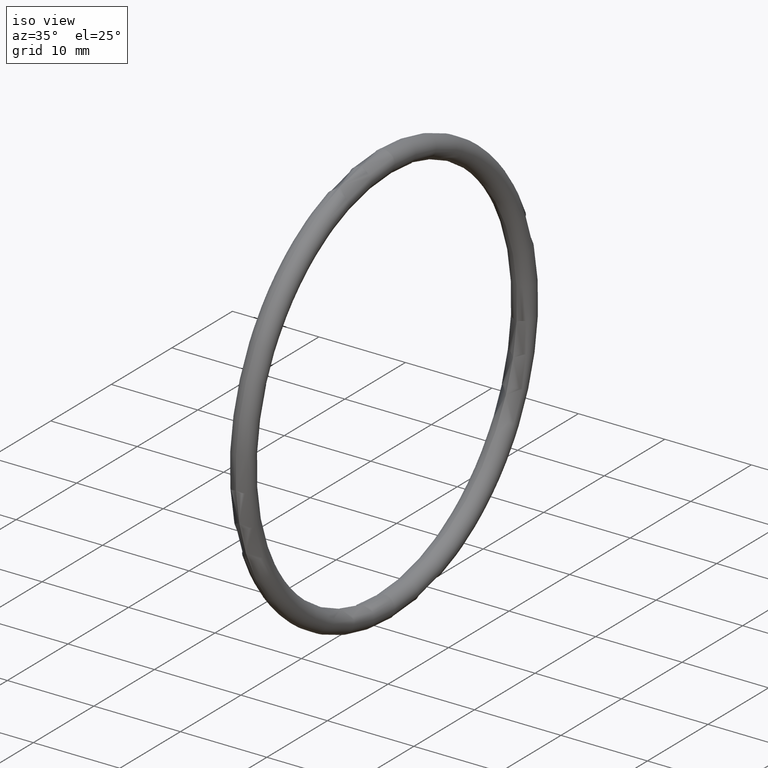
[diagram: clean part render]
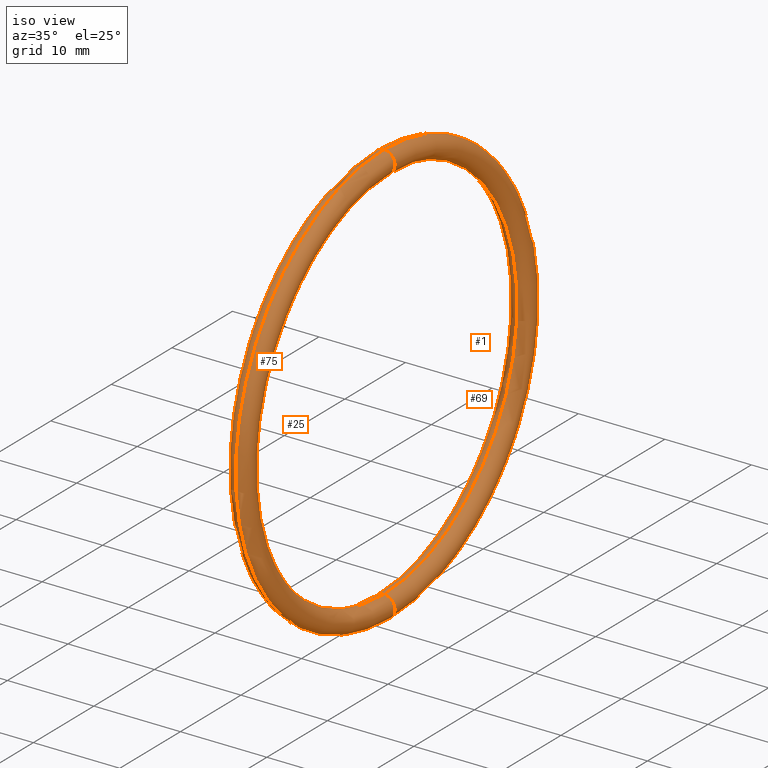
[diagram: same view with one multi-face feature highlighted, each face labeled with its STEP entity id]
A machine part, iso view. The highlighted faces form ONE feature: a constant-radius fillet chain: 4 tangent blend faces with common blend radius 1.27 mm. The faces share edges in the B-rep.
Their STEP definitions:
[1] entity #69 (Torus):
#21 = EDGE_CURVE ( 'NONE', #31, #79, #61, .T. ) ;
#22 = ORIENTED_EDGE ( 'NONE', *, *, #78, .T. ) ;
#23 = ORIENTED_EDGE ( 'NONE', *, *, #24, .F. ) ;
#24 = EDGE_CURVE ( 'NONE', #32, #80, #56, .T. ) ;
#26 = EDGE_CURVE ( 'NONE', #31, #32, #41, .T. ) ;
#31 = VERTEX_POINT ( 'NONE', #115 ) ;
#32 = VERTEX_POINT ( 'NONE', #101 ) ;
#37 = DIRECTION ( 'NONE',  ( 0.0000000000000000000, 0.0000000000000000000, -1.000000000000000000 ) ) ;
#38 = DIRECTION ( 'NONE',  ( 0.0000000000000000000, -1.000000000000000000, 0.0000000000000000000 ) ) ;
#39 = CARTESIAN_POINT ( 'NONE',  ( 0.1000000000000001300, 0.0000000000000000000, 0.9149999999999999200 ) ) ;
#40 = AXIS2_PLACEMENT_3D ( 'NONE', #39, #38, #37 ) ;
#41 = CIRCLE ( 'NONE', #40, 0.05000000000000001000 ) ;
#53 = DIRECTION ( 'NONE',  ( 0.0000000000000000000, 0.0000000000000000000, 1.000000000000000000 ) ) ;
#54 = DIRECTION ( 'NONE',  ( -1.000000000000000000, 0.0000000000000000000, 0.0000000000000000000 ) ) ;
#55 = AXIS2_PLACEMENT_3D ( 'NONE', #62, #54, #53 ) ;
#56 = CIRCLE ( 'NONE', #55, 0.8649999999999998800 ) ;
#58 = DIRECTION ( 'NONE',  ( 0.0000000000000000000, 0.0000000000000000000, 1.000000000000000000 ) ) ;
#59 = DIRECTION ( 'NONE',  ( -1.000000000000000000, 0.0000000000000000000, 0.0000000000000000000 ) ) ;
#60 = AXIS2_PLACEMENT_3D ( 'NONE', #67, #59, #58 ) ;
#61 = CIRCLE ( 'NONE', #60, 0.9649999999999999700 ) ;
#62 = CARTESIAN_POINT ( 'NONE',  ( 0.1000000000000001300, 0.0000000000000000000, 0.0000000000000000000 ) ) ;
#67 = CARTESIAN_POINT ( 'NONE',  ( 0.1000000000000001300, 0.0000000000000000000, 0.0000000000000000000 ) ) ;
#69 = ADVANCED_FACE ( 'NONE', ( #100 ), #106, .T. ) ;
#70 = EDGE_LOOP ( 'NONE', ( #71, #72, #22, #23 ) ) ;
#71 = ORIENTED_EDGE ( 'NONE', *, *, #26, .F. ) ;
#72 = ORIENTED_EDGE ( 'NONE', *, *, #21, .T. ) ;
#78 = EDGE_CURVE ( 'NONE', #79, #80, #92, .T. ) ;
#79 = VERTEX_POINT ( 'NONE', #108 ) ;
#80 = VERTEX_POINT ( 'NONE', #111 ) ;
#88 = DIRECTION ( 'NONE',  ( 0.0000000000000000000, -1.224646799147354700E-016, 1.000000000000000000 ) ) ;
#89 = DIRECTION ( 'NONE',  ( 0.0000000000000000000, 1.000000000000000000, 1.224646799147353200E-016 ) ) ;
#90 = CARTESIAN_POINT ( 'NONE',  ( 0.1000000000000001300, 1.120551821219828000E-016, -0.9149999999999999200 ) ) ;
#91 = AXIS2_PLACEMENT_3D ( 'NONE', #90, #89, #88 ) ;
#92 = CIRCLE ( 'NONE', #91, 0.05000000000000001000 ) ;
#100 = FACE_OUTER_BOUND ( 'NONE', #70, .T. ) ;
#101 = CARTESIAN_POINT ( 'NONE',  ( 0.1000000000000001300, 0.0000000000000000000, 0.8649999999999998800 ) ) ;
#105 = AXIS2_PLACEMENT_3D ( 'NONE', #114, #113, #112 ) ;
#106 = TOROIDAL_SURFACE ( 'NONE', #105, 0.9149999999999999200, 0.05000000000000002400 ) ;
#108 = CARTESIAN_POINT ( 'NONE',  ( 0.1000000000000001300, 1.181784161177195800E-016, -0.9649999999999999700 ) ) ;
#111 = CARTESIAN_POINT ( 'NONE',  ( 0.1000000000000001300, 1.059319481262460300E-016, -0.8649999999999998800 ) ) ;
#112 = DIRECTION ( 'NONE',  ( 0.0000000000000000000, 0.0000000000000000000, 1.000000000000000000 ) ) ;
#113 = DIRECTION ( 'NONE',  ( -1.000000000000000000, 0.0000000000000000000, 0.0000000000000000000 ) ) ;
#114 = CARTESIAN_POINT ( 'NONE',  ( 0.1000000000000001300, 0.0000000000000000000, 0.0000000000000000000 ) ) ;
#115 = CARTESIAN_POINT ( 'NONE',  ( 0.1000000000000001300, 0.0000000000000000000, 0.9649999999999999700 ) ) ;
[2] entity #1 (Torus):
#1 = ADVANCED_FACE ( 'NONE', ( #13 ), #12, .T. ) ;
#2 = EDGE_CURVE ( 'NONE', #80, #79, #6, .T. ) ;
#3 = DIRECTION ( 'NONE',  ( 0.0000000000000000000, 1.000000000000000000, 1.224646799147353200E-016 ) ) ;
#4 = CARTESIAN_POINT ( 'NONE',  ( 0.1000000000000001300, 1.120551821219828000E-016, -0.9149999999999999200 ) ) ;
#5 = AXIS2_PLACEMENT_3D ( 'NONE', #4, #3, #68 ) ;
#6 = CIRCLE ( 'NONE', #5, 0.05000000000000001000 ) ;
#7 = CARTESIAN_POINT ( 'NONE',  ( 0.1000000000000001300, 0.0000000000000000000, 0.9149999999999999200 ) ) ;
#8 = DIRECTION ( 'NONE',  ( 0.0000000000000000000, 0.0000000000000000000, 1.000000000000000000 ) ) ;
#9 = DIRECTION ( 'NONE',  ( -1.000000000000000000, 0.0000000000000000000, 0.0000000000000000000 ) ) ;
#10 = CARTESIAN_POINT ( 'NONE',  ( 0.1000000000000001300, 0.0000000000000000000, 0.0000000000000000000 ) ) ;
#11 = AXIS2_PLACEMENT_3D ( 'NONE', #10, #9, #8 ) ;
#12 = TOROIDAL_SURFACE ( 'NONE', #11, 0.9149999999999999200, 0.05000000000000002400 ) ;
#13 = FACE_OUTER_BOUND ( 'NONE', #14, .T. ) ;
#14 = EDGE_LOOP ( 'NONE', ( #15, #16, #48, #20 ) ) ;
#15 = ORIENTED_EDGE ( 'NONE', *, *, #21, .F. ) ;
#16 = ORIENTED_EDGE ( 'NONE', *, *, #19, .F. ) ;
#19 = EDGE_CURVE ( 'NONE', #32, #31, #66, .T. ) ;
#20 = ORIENTED_EDGE ( 'NONE', *, *, #2, .T. ) ;
#21 = EDGE_CURVE ( 'NONE', #31, #79, #61, .T. ) ;
#24 = EDGE_CURVE ( 'NONE', #32, #80, #56, .T. ) ;
#31 = VERTEX_POINT ( 'NONE', #115 ) ;
#32 = VERTEX_POINT ( 'NONE', #101 ) ;
#48 = ORIENTED_EDGE ( 'NONE', *, *, #24, .T. ) ;
#53 = DIRECTION ( 'NONE',  ( 0.0000000000000000000, 0.0000000000000000000, 1.000000000000000000 ) ) ;
#54 = DIRECTION ( 'NONE',  ( -1.000000000000000000, 0.0000000000000000000, 0.0000000000000000000 ) ) ;
#55 = AXIS2_PLACEMENT_3D ( 'NONE', #62, #54, #53 ) ;
#56 = CIRCLE ( 'NONE', #55, 0.8649999999999998800 ) ;
#58 = DIRECTION ( 'NONE',  ( 0.0000000000000000000, 0.0000000000000000000, 1.000000000000000000 ) ) ;
#59 = DIRECTION ( 'NONE',  ( -1.000000000000000000, 0.0000000000000000000, 0.0000000000000000000 ) ) ;
#60 = AXIS2_PLACEMENT_3D ( 'NONE', #67, #59, #58 ) ;
#61 = CIRCLE ( 'NONE', #60, 0.9649999999999999700 ) ;
#62 = CARTESIAN_POINT ( 'NONE',  ( 0.1000000000000001300, 0.0000000000000000000, 0.0000000000000000000 ) ) ;
#63 = DIRECTION ( 'NONE',  ( 0.0000000000000000000, 0.0000000000000000000, -1.000000000000000000 ) ) ;
#64 = DIRECTION ( 'NONE',  ( 0.0000000000000000000, -1.000000000000000000, 0.0000000000000000000 ) ) ;
#65 = AXIS2_PLACEMENT_3D ( 'NONE', #7, #64, #63 ) ;
#66 = CIRCLE ( 'NONE', #65, 0.05000000000000001000 ) ;
#67 = CARTESIAN_POINT ( 'NONE',  ( 0.1000000000000001300, 0.0000000000000000000, 0.0000000000000000000 ) ) ;
#68 = DIRECTION ( 'NONE',  ( 0.0000000000000000000, -1.224646799147354700E-016, 1.000000000000000000 ) ) ;
#79 = VERTEX_POINT ( 'NONE', #108 ) ;
#80 = VERTEX_POINT ( 'NONE', #111 ) ;
#101 = CARTESIAN_POINT ( 'NONE',  ( 0.1000000000000001300, 0.0000000000000000000, 0.8649999999999998800 ) ) ;
#108 = CARTESIAN_POINT ( 'NONE',  ( 0.1000000000000001300, 1.181784161177195800E-016, -0.9649999999999999700 ) ) ;
#111 = CARTESIAN_POINT ( 'NONE',  ( 0.1000000000000001300, 1.059319481262460300E-016, -0.8649999999999998800 ) ) ;
#115 = CARTESIAN_POINT ( 'NONE',  ( 0.1000000000000001300, 0.0000000000000000000, 0.9649999999999999700 ) ) ;
[3] entity #25 (Torus):
#2 = EDGE_CURVE ( 'NONE', #80, #79, #6, .T. ) ;
#3 = DIRECTION ( 'NONE',  ( 0.0000000000000000000, 1.000000000000000000, 1.224646799147353200E-016 ) ) ;
#4 = CARTESIAN_POINT ( 'NONE',  ( 0.1000000000000001300, 1.120551821219828000E-016, -0.9149999999999999200 ) ) ;
#5 = AXIS2_PLACEMENT_3D ( 'NONE', #4, #3, #68 ) ;
#6 = CIRCLE ( 'NONE', #5, 0.05000000000000001000 ) ;
#7 = CARTESIAN_POINT ( 'NONE',  ( 0.1000000000000001300, 0.0000000000000000000, 0.9149999999999999200 ) ) ;
#18 = EDGE_LOOP ( 'NONE', ( #49, #73, #51, #50 ) ) ;
#19 = EDGE_CURVE ( 'NONE', #32, #31, #66, .T. ) ;
#25 = ADVANCED_FACE ( 'NONE', ( #57 ), #46, .T. ) ;
#28 = EDGE_CURVE ( 'NONE', #80, #32, #36, .T. ) ;
#30 = EDGE_CURVE ( 'NONE', #79, #31, #109, .T. ) ;
#31 = VERTEX_POINT ( 'NONE', #115 ) ;
#32 = VERTEX_POINT ( 'NONE', #101 ) ;
#33 = DIRECTION ( 'NONE',  ( 0.0000000000000000000, 0.0000000000000000000, 1.000000000000000000 ) ) ;
#34 = DIRECTION ( 'NONE',  ( -1.000000000000000000, 0.0000000000000000000, 0.0000000000000000000 ) ) ;
#35 = AXIS2_PLACEMENT_3D ( 'NONE', #42, #34, #33 ) ;
#36 = CIRCLE ( 'NONE', #35, 0.8649999999999998800 ) ;
#42 = CARTESIAN_POINT ( 'NONE',  ( 0.1000000000000001300, 0.0000000000000000000, 0.0000000000000000000 ) ) ;
#43 = DIRECTION ( 'NONE',  ( 0.0000000000000000000, 0.0000000000000000000, 1.000000000000000000 ) ) ;
#44 = DIRECTION ( 'NONE',  ( -1.000000000000000000, 0.0000000000000000000, 0.0000000000000000000 ) ) ;
#45 = AXIS2_PLACEMENT_3D ( 'NONE', #52, #44, #43 ) ;
#46 = TOROIDAL_SURFACE ( 'NONE', #45, 0.9149999999999999200, 0.05000000000000002400 ) ;
#49 = ORIENTED_EDGE ( 'NONE', *, *, #30, .F. ) ;
#50 = ORIENTED_EDGE ( 'NONE', *, *, #19, .T. ) ;
#51 = ORIENTED_EDGE ( 'NONE', *, *, #28, .T. ) ;
#52 = CARTESIAN_POINT ( 'NONE',  ( 0.1000000000000001300, 0.0000000000000000000, 0.0000000000000000000 ) ) ;
#57 = FACE_OUTER_BOUND ( 'NONE', #18, .T. ) ;
#63 = DIRECTION ( 'NONE',  ( 0.0000000000000000000, 0.0000000000000000000, -1.000000000000000000 ) ) ;
#64 = DIRECTION ( 'NONE',  ( 0.0000000000000000000, -1.000000000000000000, 0.0000000000000000000 ) ) ;
#65 = AXIS2_PLACEMENT_3D ( 'NONE', #7, #64, #63 ) ;
#66 = CIRCLE ( 'NONE', #65, 0.05000000000000001000 ) ;
#68 = DIRECTION ( 'NONE',  ( 0.0000000000000000000, -1.224646799147354700E-016, 1.000000000000000000 ) ) ;
#73 = ORIENTED_EDGE ( 'NONE', *, *, #2, .F. ) ;
#79 = VERTEX_POINT ( 'NONE', #108 ) ;
#80 = VERTEX_POINT ( 'NONE', #111 ) ;
#83 = AXIS2_PLACEMENT_3D ( 'NONE', #85, #84, #116 ) ;
#84 = DIRECTION ( 'NONE',  ( -1.000000000000000000, 0.0000000000000000000, 0.0000000000000000000 ) ) ;
#85 = CARTESIAN_POINT ( 'NONE',  ( 0.1000000000000001300, 0.0000000000000000000, 0.0000000000000000000 ) ) ;
#101 = CARTESIAN_POINT ( 'NONE',  ( 0.1000000000000001300, 0.0000000000000000000, 0.8649999999999998800 ) ) ;
#108 = CARTESIAN_POINT ( 'NONE',  ( 0.1000000000000001300, 1.181784161177195800E-016, -0.9649999999999999700 ) ) ;
#109 = CIRCLE ( 'NONE', #83, 0.9649999999999999700 ) ;
#111 = CARTESIAN_POINT ( 'NONE',  ( 0.1000000000000001300, 1.059319481262460300E-016, -0.8649999999999998800 ) ) ;
#115 = CARTESIAN_POINT ( 'NONE',  ( 0.1000000000000001300, 0.0000000000000000000, 0.9649999999999999700 ) ) ;
#116 = DIRECTION ( 'NONE',  ( 0.0000000000000000000, 0.0000000000000000000, 1.000000000000000000 ) ) ;
[4] entity #75 (Torus):
#17 = ORIENTED_EDGE ( 'NONE', *, *, #26, .T. ) ;
#26 = EDGE_CURVE ( 'NONE', #31, #32, #41, .T. ) ;
#27 = ORIENTED_EDGE ( 'NONE', *, *, #28, .F. ) ;
#28 = EDGE_CURVE ( 'NONE', #80, #32, #36, .T. ) ;
#29 = ORIENTED_EDGE ( 'NONE', *, *, #30, .T. ) ;
#30 = EDGE_CURVE ( 'NONE', #79, #31, #109, .T. ) ;
#31 = VERTEX_POINT ( 'NONE', #115 ) ;
#32 = VERTEX_POINT ( 'NONE', #101 ) ;
#33 = DIRECTION ( 'NONE',  ( 0.0000000000000000000, 0.0000000000000000000, 1.000000000000000000 ) ) ;
#34 = DIRECTION ( 'NONE',  ( -1.000000000000000000, 0.0000000000000000000, 0.0000000000000000000 ) ) ;
#35 = AXIS2_PLACEMENT_3D ( 'NONE', #42, #34, #33 ) ;
#36 = CIRCLE ( 'NONE', #35, 0.8649999999999998800 ) ;
#37 = DIRECTION ( 'NONE',  ( 0.0000000000000000000, 0.0000000000000000000, -1.000000000000000000 ) ) ;
#38 = DIRECTION ( 'NONE',  ( 0.0000000000000000000, -1.000000000000000000, 0.0000000000000000000 ) ) ;
#39 = CARTESIAN_POINT ( 'NONE',  ( 0.1000000000000001300, 0.0000000000000000000, 0.9149999999999999200 ) ) ;
#40 = AXIS2_PLACEMENT_3D ( 'NONE', #39, #38, #37 ) ;
#41 = CIRCLE ( 'NONE', #40, 0.05000000000000001000 ) ;
#42 = CARTESIAN_POINT ( 'NONE',  ( 0.1000000000000001300, 0.0000000000000000000, 0.0000000000000000000 ) ) ;
#75 = ADVANCED_FACE ( 'NONE', ( #119 ), #81, .T. ) ;
#76 = EDGE_LOOP ( 'NONE', ( #77, #29, #17, #27 ) ) ;
#77 = ORIENTED_EDGE ( 'NONE', *, *, #78, .F. ) ;
#78 = EDGE_CURVE ( 'NONE', #79, #80, #92, .T. ) ;
#79 = VERTEX_POINT ( 'NONE', #108 ) ;
#80 = VERTEX_POINT ( 'NONE', #111 ) ;
#81 = TOROIDAL_SURFACE ( 'NONE', #118, 0.9149999999999999200, 0.05000000000000002400 ) ;
#82 = DIRECTION ( 'NONE',  ( -1.000000000000000000, 0.0000000000000000000, 0.0000000000000000000 ) ) ;
#83 = AXIS2_PLACEMENT_3D ( 'NONE', #85, #84, #116 ) ;
#84 = DIRECTION ( 'NONE',  ( -1.000000000000000000, 0.0000000000000000000, 0.0000000000000000000 ) ) ;
#85 = CARTESIAN_POINT ( 'NONE',  ( 0.1000000000000001300, 0.0000000000000000000, 0.0000000000000000000 ) ) ;
#88 = DIRECTION ( 'NONE',  ( 0.0000000000000000000, -1.224646799147354700E-016, 1.000000000000000000 ) ) ;
#89 = DIRECTION ( 'NONE',  ( 0.0000000000000000000, 1.000000000000000000, 1.224646799147353200E-016 ) ) ;
#90 = CARTESIAN_POINT ( 'NONE',  ( 0.1000000000000001300, 1.120551821219828000E-016, -0.9149999999999999200 ) ) ;
#91 = AXIS2_PLACEMENT_3D ( 'NONE', #90, #89, #88 ) ;
#92 = CIRCLE ( 'NONE', #91, 0.05000000000000001000 ) ;
#101 = CARTESIAN_POINT ( 'NONE',  ( 0.1000000000000001300, 0.0000000000000000000, 0.8649999999999998800 ) ) ;
#104 = CARTESIAN_POINT ( 'NONE',  ( 0.1000000000000001300, 0.0000000000000000000, 0.0000000000000000000 ) ) ;
#108 = CARTESIAN_POINT ( 'NONE',  ( 0.1000000000000001300, 1.181784161177195800E-016, -0.9649999999999999700 ) ) ;
#109 = CIRCLE ( 'NONE', #83, 0.9649999999999999700 ) ;
#111 = CARTESIAN_POINT ( 'NONE',  ( 0.1000000000000001300, 1.059319481262460300E-016, -0.8649999999999998800 ) ) ;
#115 = CARTESIAN_POINT ( 'NONE',  ( 0.1000000000000001300, 0.0000000000000000000, 0.9649999999999999700 ) ) ;
#116 = DIRECTION ( 'NONE',  ( 0.0000000000000000000, 0.0000000000000000000, 1.000000000000000000 ) ) ;
#117 = DIRECTION ( 'NONE',  ( 0.0000000000000000000, 0.0000000000000000000, 1.000000000000000000 ) ) ;
#118 = AXIS2_PLACEMENT_3D ( 'NONE', #104, #82, #117 ) ;
#119 = FACE_OUTER_BOUND ( 'NONE', #76, .T. ) ;